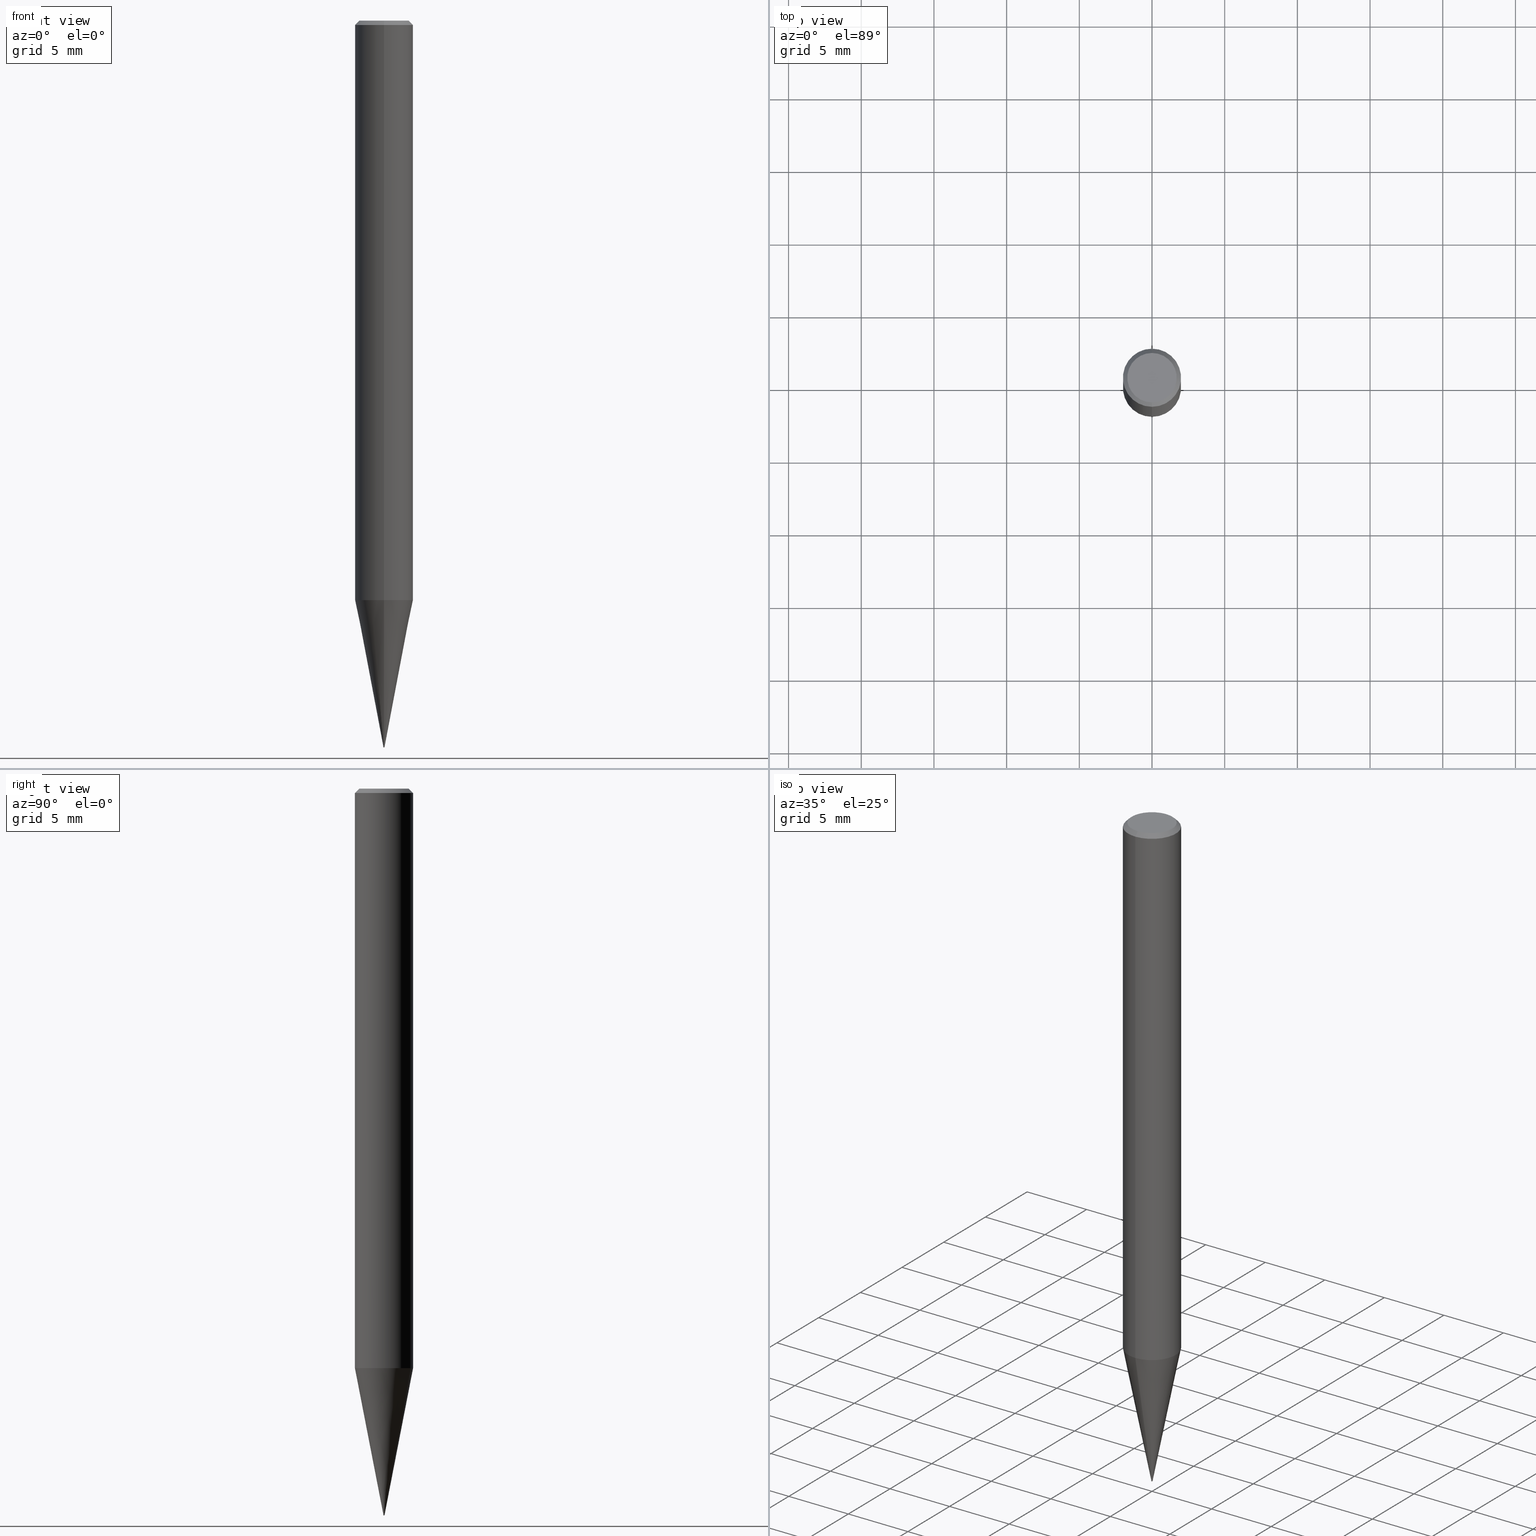
[diagram: canonical four-view strip — front | top / right | iso, engineering-drawing reading convention]
A machine part, canonical four-view strip (front | top / right | iso — engineering-drawing reading convention). The complete STEP part file that produces these views, byte-faithful:
ISO-10303-21;
HEADER;
FILE_DESCRIPTION(('no description'),'unknown implementation level');
FILE_NAME('HSB2001-0010-Huellk.stp','  ',('CIMSOURCE GmbH'),('CADClick - KiM GmbH - www.kimweb.de'),'unknown preprocess','ACIS','unknown authorization');
FILE_SCHEMA(('automotive_design'));
ENDSEC;
DATA;
#1=MECHANICAL_DESIGN_GEOMETRIC_PRESENTATION_REPRESENTATION(' ',(#14,#15,#16,#17,#18,#19,#20,#21,#22,#23,#24,#25,#26,#27,#28,#29,#30,#31,#32,#33,#34,#35,#36,#37,#38,#39,#40,#41,#42,#43,#44,#45,#46,#47,#48,#49,#50,#51,#52,#53,#54,#55,#56,#57,#58,#59,#60,#61,#62,#63,#64,#65,#66),#10);
#2=PRODUCT_DEFINITION_CONTEXT('',#67,'design');
#3=APPLICATION_PROTOCOL_DEFINITION('INTERNATIONAL STANDARD','automotive_design',1994,#67);
#4=PRODUCT_CATEGORY_RELATIONSHIP('NONE','NONE',#68,#69);
#5=SHAPE_DEFINITION_REPRESENTATION(#70,#71);
#6=PRODUCT_DEFINITION_CONTEXT('',#72,'design');
#7=APPLICATION_PROTOCOL_DEFINITION('INTERNATIONAL STANDARD','automotive_design',1994,#72);
#8=PRODUCT_CATEGORY_RELATIONSHIP('NONE','NONE',#73,#74);
#9=SHAPE_DEFINITION_REPRESENTATION(#75,#76);
#10= (GEOMETRIC_REPRESENTATION_CONTEXT(3)GLOBAL_UNCERTAINTY_ASSIGNED_CONTEXT((#79))GLOBAL_UNIT_ASSIGNED_CONTEXT((#81,#82,#83))REPRESENTATION_CONTEXT('NONE','WORKSPACE'));
#14=STYLED_ITEM('',(#85),#86);
#15=STYLED_ITEM('',(#87),#88);
#16=STYLED_ITEM('',(#89),#90);
#17=STYLED_ITEM('',(#91),#92);
#18=STYLED_ITEM('',(#93),#94);
#19=STYLED_ITEM('',(#95),#96);
#20=STYLED_ITEM('',(#97),#98);
#21=STYLED_ITEM('',(#99),#100);
#22=STYLED_ITEM('',(#101),#102);
#23=STYLED_ITEM('',(#103),#104);
#24=STYLED_ITEM('',(#105),#106);
#25=STYLED_ITEM('',(#107),#108);
#26=STYLED_ITEM('',(#109),#110);
#27=STYLED_ITEM('',(#111),#112);
#28=STYLED_ITEM('',(#113),#114);
#29=STYLED_ITEM('',(#115),#116);
#30=STYLED_ITEM('',(#117),#118);
#31=STYLED_ITEM('',(#119),#120);
#32=STYLED_ITEM('',(#121),#122);
#33=STYLED_ITEM('',(#123),#124);
#34=STYLED_ITEM('',(#125),#126);
#35=STYLED_ITEM('',(#127),#128);
#36=STYLED_ITEM('',(#129),#130);
#37=STYLED_ITEM('',(#131),#132);
#38=STYLED_ITEM('',(#133),#134);
#39=STYLED_ITEM('',(#135),#136);
#40=STYLED_ITEM('',(#137),#138);
#41=STYLED_ITEM('',(#139),#140);
#42=STYLED_ITEM('',(#141),#142);
#43=STYLED_ITEM('',(#143),#144);
#44=STYLED_ITEM('',(#145),#146);
#45=STYLED_ITEM('',(#147),#148);
#46=STYLED_ITEM('',(#149),#150);
#47=STYLED_ITEM('',(#151),#152);
#48=STYLED_ITEM('',(#153),#154);
#49=STYLED_ITEM('',(#155),#156);
#50=STYLED_ITEM('',(#157),#158);
#51=STYLED_ITEM('',(#159),#160);
#52=STYLED_ITEM('',(#161),#162);
#53=STYLED_ITEM('',(#163),#164);
#54=STYLED_ITEM('',(#165),#166);
#55=STYLED_ITEM('',(#167),#168);
#56=STYLED_ITEM('',(#169),#170);
#57=STYLED_ITEM('',(#171),#172);
#58=STYLED_ITEM('',(#173),#174);
#59=STYLED_ITEM('',(#175),#176);
#60=STYLED_ITEM('',(#177),#178);
#61=STYLED_ITEM('',(#179),#180);
#62=STYLED_ITEM('',(#181),#182);
#63=STYLED_ITEM('',(#183),#184);
#64=STYLED_ITEM('',(#185),#186);
#65=STYLED_ITEM('',(#187),#188);
#66=STYLED_ITEM('',(#189),#190);
#67=APPLICATION_CONTEXT(' ');
#68=PRODUCT_CATEGORY('part','NONE');
#69=PRODUCT_RELATED_PRODUCT_CATEGORY('detail',' ',(#191));
#70=PRODUCT_DEFINITION_SHAPE('NONE','NONE',#192);
#71=ADVANCED_BREP_SHAPE_REPRESENTATION('1',(#98,#193),#10);
#72=APPLICATION_CONTEXT(' ');
#73=PRODUCT_CATEGORY('part','NONE');
#74=PRODUCT_RELATED_PRODUCT_CATEGORY('detail',' ',(#194));
#75=PRODUCT_DEFINITION_SHAPE('NONE','NONE',#195);
#76=ADVANCED_BREP_SHAPE_REPRESENTATION('2',(#174,#196),#10);
#79=UNCERTAINTY_MEASURE_WITH_UNIT(LENGTH_MEASURE(1.0E-006),#81,'','');
#81= (CONVERSION_BASED_UNIT('MILLIMETRE',#199)LENGTH_UNIT()NAMED_UNIT(#202));
#82= (NAMED_UNIT(#204)PLANE_ANGLE_UNIT()SI_UNIT($,.RADIAN.));
#83= (NAMED_UNIT(#204)SOLID_ANGLE_UNIT()SI_UNIT($,.STERADIAN.));
#85=PRESENTATION_STYLE_ASSIGNMENT((#210));
#86=ADVANCED_FACE('',(#211),#212,.T.);
#87=PRESENTATION_STYLE_ASSIGNMENT((#213));
#88=ADVANCED_FACE('',(#214),#215,.T.);
#89=PRESENTATION_STYLE_ASSIGNMENT((#216));
#90=EDGE_CURVE('',#154,#144,#217,.T.);
#91=PRESENTATION_STYLE_ASSIGNMENT((#218));
#92=EDGE_CURVE('',#166,#150,#219,.T.);
#93=PRESENTATION_STYLE_ASSIGNMENT((#220));
#94=EDGE_CURVE('',#150,#166,#221,.T.);
#95=PRESENTATION_STYLE_ASSIGNMENT((#222));
#96=EDGE_CURVE('',#184,#168,#223,.T.);
#97=PRESENTATION_STYLE_ASSIGNMENT((#224));
#98=MANIFOLD_SOLID_BREP('1',#225);
#99=PRESENTATION_STYLE_ASSIGNMENT((#226));
#100=ADVANCED_FACE('',(#227),#228,.T.);
#101=PRESENTATION_STYLE_ASSIGNMENT((#229));
#102=VERTEX_POINT('',#230);
#103=PRESENTATION_STYLE_ASSIGNMENT((#231));
#104=EDGE_CURVE('',#166,#120,#232,.T.);
#105=PRESENTATION_STYLE_ASSIGNMENT((#233));
#106=VERTEX_POINT('',#234);
#107=PRESENTATION_STYLE_ASSIGNMENT((#235));
#108=EDGE_CURVE('',#162,#102,#236,.T.);
#109=PRESENTATION_STYLE_ASSIGNMENT((#237));
#110=EDGE_CURVE('',#184,#116,#238,.T.);
#111=PRESENTATION_STYLE_ASSIGNMENT((#239));
#112=VERTEX_POINT('',#240);
#113=PRESENTATION_STYLE_ASSIGNMENT((#241));
#114=ADVANCED_FACE('',(#242),#243,.T.);
#115=PRESENTATION_STYLE_ASSIGNMENT((#244));
#116=VERTEX_POINT('',#245);
#117=PRESENTATION_STYLE_ASSIGNMENT((#246));
#118=EDGE_CURVE('',#112,#144,#247,.T.);
#119=PRESENTATION_STYLE_ASSIGNMENT((#248));
#120=VERTEX_POINT('',#249);
#121=PRESENTATION_STYLE_ASSIGNMENT((#250));
#122=VERTEX_POINT('',#251);
#123=PRESENTATION_STYLE_ASSIGNMENT((#252));
#124=EDGE_CURVE('',#106,#150,#253,.T.);
#125=PRESENTATION_STYLE_ASSIGNMENT((#254));
#126=EDGE_CURVE('',#184,#116,#255,.T.);
#127=PRESENTATION_STYLE_ASSIGNMENT((#256));
#128=EDGE_CURVE('',#102,#162,#257,.T.);
#129=PRESENTATION_STYLE_ASSIGNMENT((#258));
#130=ADVANCED_FACE('',(#259,#260),#261,.T.);
#131=PRESENTATION_STYLE_ASSIGNMENT((#262));
#132=ADVANCED_FACE('',(#263),#264,.T.);
#133=PRESENTATION_STYLE_ASSIGNMENT((#265));
#134=EDGE_CURVE('',#116,#184,#266,.T.);
#135=PRESENTATION_STYLE_ASSIGNMENT((#267));
#136=ADVANCED_FACE('',(#268),#269,.T.);
#137=PRESENTATION_STYLE_ASSIGNMENT((#270));
#138=ADVANCED_FACE('',(#271),#272,.T.);
#139=PRESENTATION_STYLE_ASSIGNMENT((#273));
#140=ADVANCED_FACE('',(#274),#275,.T.);
#141=PRESENTATION_STYLE_ASSIGNMENT((#276));
#142=EDGE_CURVE('',#168,#122,#277,.T.);
#143=PRESENTATION_STYLE_ASSIGNMENT((#278));
#144=VERTEX_POINT('',#279);
#145=PRESENTATION_STYLE_ASSIGNMENT((#280));
#146=EDGE_CURVE('',#106,#120,#281,.T.);
#147=PRESENTATION_STYLE_ASSIGNMENT((#282));
#148=EDGE_CURVE('',#122,#168,#283,.T.);
#149=PRESENTATION_STYLE_ASSIGNMENT((#284));
#150=VERTEX_POINT('',#285);
#151=PRESENTATION_STYLE_ASSIGNMENT((#286));
#152=EDGE_CURVE('',#102,#166,#287,.T.);
#153=PRESENTATION_STYLE_ASSIGNMENT((#288));
#154=VERTEX_POINT('',#289);
#155=PRESENTATION_STYLE_ASSIGNMENT((#290));
#156=EDGE_CURVE('',#154,#190,#291,.T.);
#157=PRESENTATION_STYLE_ASSIGNMENT((#292));
#158=EDGE_CURVE('',#120,#106,#293,.T.);
#159=PRESENTATION_STYLE_ASSIGNMENT((#294));
#160=EDGE_CURVE('',#144,#112,#295,.T.);
#161=PRESENTATION_STYLE_ASSIGNMENT((#296));
#162=VERTEX_POINT('',#297);
#163=PRESENTATION_STYLE_ASSIGNMENT((#298));
#164=EDGE_CURVE('',#122,#116,#299,.T.);
#165=PRESENTATION_STYLE_ASSIGNMENT((#300));
#166=VERTEX_POINT('',#301);
#167=PRESENTATION_STYLE_ASSIGNMENT((#302));
#168=VERTEX_POINT('',#303);
#169=PRESENTATION_STYLE_ASSIGNMENT((#304));
#170=ADVANCED_FACE('',(#305),#306,.T.);
#171=PRESENTATION_STYLE_ASSIGNMENT((#307));
#172=ADVANCED_FACE('',(#308),#309,.T.);
#173=PRESENTATION_STYLE_ASSIGNMENT((#310));
#174=MANIFOLD_SOLID_BREP('2',#311);
#175=PRESENTATION_STYLE_ASSIGNMENT((#312));
#176=EDGE_CURVE('',#190,#154,#313,.T.);
#177=PRESENTATION_STYLE_ASSIGNMENT((#314));
#178=ADVANCED_FACE('',(#315),#316,.T.);
#179=PRESENTATION_STYLE_ASSIGNMENT((#317));
#180=ADVANCED_FACE('',(#318),#319,.T.);
#181=PRESENTATION_STYLE_ASSIGNMENT((#320));
#182=ADVANCED_FACE('',(#321),#322,.T.);
#183=PRESENTATION_STYLE_ASSIGNMENT((#323));
#184=VERTEX_POINT('',#324);
#185=PRESENTATION_STYLE_ASSIGNMENT((#325));
#186=EDGE_CURVE('',#150,#162,#326,.T.);
#187=PRESENTATION_STYLE_ASSIGNMENT((#327));
#188=EDGE_CURVE('',#112,#190,#328,.T.);
#189=PRESENTATION_STYLE_ASSIGNMENT((#329));
#190=VERTEX_POINT('',#330);
#191=PRODUCT('1','1','PART-1-DESC',(#331));
#192=PRODUCT_DEFINITION('NONE','NONE',#332,#2);
#193=AXIS2_PLACEMENT_3D('',#333,#334,#335);
#194=PRODUCT('2','2','PART-2-DESC',(#336));
#195=PRODUCT_DEFINITION('NONE','NONE',#337,#6);
#196=AXIS2_PLACEMENT_3D('',#338,#339,#340);
#199=LENGTH_MEASURE_WITH_UNIT(LENGTH_MEASURE(1.0),#341);
#202=DIMENSIONAL_EXPONENTS(1.0,0.0,0.0,0.0,0.0,0.0,0.0);
#204=DIMENSIONAL_EXPONENTS(0.0,0.0,0.0,0.0,0.0,0.0,0.0);
#210=SURFACE_STYLE_USAGE(.BOTH.,#342);
#211=FACE_OUTER_BOUND('',#343,.T.);
#212=CONICAL_SURFACE('',#344,1.85,0.785398163397453);
#213=SURFACE_STYLE_USAGE(.BOTH.,#345);
#214=FACE_OUTER_BOUND('',#346,.T.);
#215=SPHERICAL_SURFACE('',#347,0.05);
#216=CURVE_STYLE('',#348,POSITIVE_LENGTH_MEASURE(1.0E-006),#349);
#217=LINE('',#350,#351);
#218=CURVE_STYLE('',#352,POSITIVE_LENGTH_MEASURE(1.0E-006),#353);
#219=CIRCLE('',#354,2.0);
#220=CURVE_STYLE('',#355,POSITIVE_LENGTH_MEASURE(1.0E-006),#356);
#221=CIRCLE('',#357,2.0);
#222=CURVE_STYLE('',#358,POSITIVE_LENGTH_MEASURE(1.0E-006),#359);
#223=LINE('',#360,#361);
#224=SURFACE_STYLE_USAGE(.BOTH.,#362);
#225=CLOSED_SHELL('',(#170,#100,#86,#130,#178,#138,#182,#172,#132));
#226=SURFACE_STYLE_USAGE(.BOTH.,#363);
#227=FACE_OUTER_BOUND('',#364,.T.);
#228=CYLINDRICAL_SURFACE('',#365,2.0);
#229=POINT_STYLE(' ',#366,POSITIVE_LENGTH_MEASURE(1.0E-006),#367);
#230=CARTESIAN_POINT('',(0.0,1.7,0.0));
#231=CURVE_STYLE('',#368,POSITIVE_LENGTH_MEASURE(1.0E-006),#369);
#232=LINE('',#370,#371);
#233=POINT_STYLE(' ',#372,POSITIVE_LENGTH_MEASURE(1.0E-006),#373);
#234=CARTESIAN_POINT('',(2.44921270764475E-016,-2.0,-39.868));
#235=CURVE_STYLE('',#374,POSITIVE_LENGTH_MEASURE(1.0E-006),#375);
#236=CIRCLE('',#376,1.7);
#237=CURVE_STYLE('',#377,POSITIVE_LENGTH_MEASURE(1.0E-006),#378);
#238=CIRCLE('',#379,0.05);
#239=POINT_STYLE(' ',#380,POSITIVE_LENGTH_MEASURE(1.0E-006),#381);
#240=CARTESIAN_POINT('',(0.0,1.99995,-39.868));
#241=SURFACE_STYLE_USAGE(.BOTH.,#382);
#242=FACE_OUTER_BOUND('',#383,.T.);
#243=PLANE('',#384);
#244=POINT_STYLE(' ',#385,POSITIVE_LENGTH_MEASURE(1.0E-006),#386);
#245=CARTESIAN_POINT('',(0.0,0.05,-49.95));
#246=CURVE_STYLE('',#387,POSITIVE_LENGTH_MEASURE(1.0E-006),#388);
#247=CIRCLE('',#389,1.99995);
#248=POINT_STYLE(' ',#390,POSITIVE_LENGTH_MEASURE(1.0E-006),#391);
#249=CARTESIAN_POINT('',(0.0,2.0,-39.868));
#250=POINT_STYLE(' ',#392,POSITIVE_LENGTH_MEASURE(1.0E-006),#393);
#251=CARTESIAN_POINT('',(0.0,0.0499,-49.9));
#252=CURVE_STYLE('',#394,POSITIVE_LENGTH_MEASURE(1.0E-006),#395);
#253=LINE('',#396,#397);
#254=CURVE_STYLE('',#398,POSITIVE_LENGTH_MEASURE(1.0E-006),#399);
#255=CIRCLE('',#400,0.05);
#256=CURVE_STYLE('',#401,POSITIVE_LENGTH_MEASURE(1.0E-006),#402);
#257=CIRCLE('',#403,1.7);
#258=SURFACE_STYLE_USAGE(.BOTH.,#404);
#259=FACE_OUTER_BOUND('',#405,.T.);
#260=FACE_BOUND('',#406,.T.);
#261=PLANE('',#407);
#262=SURFACE_STYLE_USAGE(.BOTH.,#408);
#263=FACE_OUTER_BOUND('',#409,.T.);
#264=PLANE('',#410);
#265=CURVE_STYLE('',#411,POSITIVE_LENGTH_MEASURE(1.0E-006),#412);
#266=CIRCLE('',#413,0.05);
#267=SURFACE_STYLE_USAGE(.BOTH.,#414);
#268=FACE_OUTER_BOUND('',#415,.T.);
#269=SPHERICAL_SURFACE('',#416,0.05);
#270=SURFACE_STYLE_USAGE(.BOTH.,#417);
#271=FACE_OUTER_BOUND('',#418,.T.);
#272=CONICAL_SURFACE('',#419,1.85,0.785398163397453);
#273=SURFACE_STYLE_USAGE(.BOTH.,#420);
#274=FACE_OUTER_BOUND('',#421,.T.);
#275=CONICAL_SURFACE('',#422,0.04995,0.00199999733333979);
#276=CURVE_STYLE('',#423,POSITIVE_LENGTH_MEASURE(1.0E-006),#424);
#277=CIRCLE('',#425,0.0499);
#278=POINT_STYLE(' ',#426,POSITIVE_LENGTH_MEASURE(1.0E-006),#427);
#279=CARTESIAN_POINT('',(2.44915147732706E-016,-1.99995,-39.868));
#280=CURVE_STYLE('',#428,POSITIVE_LENGTH_MEASURE(1.0E-006),#429);
#281=CIRCLE('',#430,2.0);
#282=CURVE_STYLE('',#431,POSITIVE_LENGTH_MEASURE(1.0E-006),#432);
#283=CIRCLE('',#433,0.0499);
#284=POINT_STYLE(' ',#434,POSITIVE_LENGTH_MEASURE(1.0E-006),#435);
#285=CARTESIAN_POINT('',(2.44921270764475E-016,-2.0,-0.299999999999997));
#286=CURVE_STYLE('',#436,POSITIVE_LENGTH_MEASURE(1.0E-006),#437);
#287=LINE('',#438,#439);
#288=POINT_STYLE(' ',#440,POSITIVE_LENGTH_MEASURE(1.0E-006),#441);
#289=CARTESIAN_POINT('',(6.11690873734274E-018,-0.04995,-49.9));
#290=CURVE_STYLE('',#442,POSITIVE_LENGTH_MEASURE(1.0E-006),#443);
#291=CIRCLE('',#444,0.04995);
#292=CURVE_STYLE('',#445,POSITIVE_LENGTH_MEASURE(1.0E-006),#446);
#293=CIRCLE('',#447,2.0);
#294=CURVE_STYLE('',#448,POSITIVE_LENGTH_MEASURE(1.0E-006),#449);
#295=CIRCLE('',#450,1.99995);
#296=POINT_STYLE(' ',#451,POSITIVE_LENGTH_MEASURE(1.0E-006),#452);
#297=CARTESIAN_POINT('',(2.08183080149804E-016,-1.7,0.0));
#298=CURVE_STYLE('',#453,POSITIVE_LENGTH_MEASURE(1.0E-006),#454);
#299=LINE('',#455,#456);
#300=POINT_STYLE(' ',#457,POSITIVE_LENGTH_MEASURE(1.0E-006),#458);
#301=CARTESIAN_POINT('',(0.0,2.0,-0.299999999999997));
#302=POINT_STYLE(' ',#459,POSITIVE_LENGTH_MEASURE(1.0E-006),#460);
#303=CARTESIAN_POINT('',(6.11078570557366E-018,-0.0499,-49.9));
#304=SURFACE_STYLE_USAGE(.BOTH.,#461);
#305=FACE_OUTER_BOUND('',#462,.T.);
#306=CONICAL_SURFACE('',#463,1.02495,0.191983983430966);
#307=SURFACE_STYLE_USAGE(.BOTH.,#464);
#308=FACE_OUTER_BOUND('',#465,.T.);
#309=CONICAL_SURFACE('',#466,1.02495,0.191983983430966);
#310=SURFACE_STYLE_USAGE(.BOTH.,#467);
#311=CLOSED_SHELL('',(#136,#180,#114,#140,#88));
#312=CURVE_STYLE('',#468,POSITIVE_LENGTH_MEASURE(1.0E-006),#469);
#313=CIRCLE('',#470,0.04995);
#314=SURFACE_STYLE_USAGE(.BOTH.,#471);
#315=FACE_OUTER_BOUND('',#472,.T.);
#316=PLANE('',#473);
#317=SURFACE_STYLE_USAGE(.BOTH.,#474);
#318=FACE_OUTER_BOUND('',#475,.T.);
#319=CONICAL_SURFACE('',#476,0.04995,0.00199999733333979);
#320=SURFACE_STYLE_USAGE(.BOTH.,#477);
#321=FACE_OUTER_BOUND('',#478,.T.);
#322=CYLINDRICAL_SURFACE('',#479,2.0);
#323=POINT_STYLE(' ',#480,POSITIVE_LENGTH_MEASURE(1.0E-006),#481);
#324=CARTESIAN_POINT('',(6.12303176911188E-018,-0.05,-49.95));
#325=CURVE_STYLE('',#482,POSITIVE_LENGTH_MEASURE(1.0E-006),#483);
#326=LINE('',#484,#485);
#327=CURVE_STYLE('',#486,POSITIVE_LENGTH_MEASURE(1.0E-006),#487);
#328=LINE('',#488,#489);
#329=POINT_STYLE(' ',#490,POSITIVE_LENGTH_MEASURE(1.0E-006),#491);
#330=CARTESIAN_POINT('',(0.0,0.04995,-49.9));
#331=PRODUCT_CONTEXT('',#67,'mechanical');
#332=PRODUCT_DEFINITION_FORMATION_WITH_SPECIFIED_SOURCE(' ','NONE',#191,.NOT_KNOWN.);
#333=CARTESIAN_POINT('',(0.0,0.0,0.0));
#334=DIRECTION('',(0.0,0.0,1.0));
#335=DIRECTION('',(1.0,0.0,0.0));
#336=PRODUCT_CONTEXT('',#72,'mechanical');
#337=PRODUCT_DEFINITION_FORMATION_WITH_SPECIFIED_SOURCE(' ','NONE',#194,.NOT_KNOWN.);
#338=CARTESIAN_POINT('',(0.0,0.0,0.0));
#339=DIRECTION('',(0.0,0.0,1.0));
#340=DIRECTION('',(1.0,0.0,0.0));
#341= (NAMED_UNIT(#202)LENGTH_UNIT()SI_UNIT(.MILLI.,.METRE.));
#342=SURFACE_SIDE_STYLE('',(#493));
#343=EDGE_LOOP('',(#494,#495,#496,#497));
#344=AXIS2_PLACEMENT_3D('',#498,#499,#500);
#345=SURFACE_SIDE_STYLE('',(#501));
#346=EDGE_LOOP('',(#502,#503));
#347=AXIS2_PLACEMENT_3D('',#504,#505,#506);
#348=DRAUGHTING_PRE_DEFINED_CURVE_FONT('continuous');
#349=COLOUR_RGB('',0.498039215803146,0.498039215803146,0.498039215803146);
#350=CARTESIAN_POINT('',(1.25516028235025E-016,-1.02495,-44.884));
#351=VECTOR('',#507,1.0);
#352=DRAUGHTING_PRE_DEFINED_CURVE_FONT('continuous');
#353=COLOUR_RGB('',0.498039215803146,0.498039215803146,0.498039215803146);
#354=AXIS2_PLACEMENT_3D('',#508,#509,#510);
#355=DRAUGHTING_PRE_DEFINED_CURVE_FONT('continuous');
#356=COLOUR_RGB('',0.498039215803146,0.498039215803146,0.498039215803146);
#357=AXIS2_PLACEMENT_3D('',#511,#512,#513);
#358=DRAUGHTING_PRE_DEFINED_CURVE_FONT('continuous');
#359=COLOUR_RGB('',0.800000011920929,0.800000011920929,0.800000011920929);
#360=CARTESIAN_POINT('',(6.11690873734277E-018,-0.04995,-49.925));
#361=VECTOR('',#514,1.0);
#362=SURFACE_SIDE_STYLE('',(#515));
#363=SURFACE_SIDE_STYLE('',(#516));
#364=EDGE_LOOP('',(#517,#518,#519,#520));
#365=AXIS2_PLACEMENT_3D('',#521,#522,#523);
#366=PRE_DEFINED_MARKER('');
#367=COLOUR_RGB('',0.498039215803146,0.498039215803146,0.498039215803146);
#368=DRAUGHTING_PRE_DEFINED_CURVE_FONT('continuous');
#369=COLOUR_RGB('',0.498039215803146,0.498039215803146,0.498039215803146);
#370=CARTESIAN_POINT('',(-2.44921270764475E-016,2.0,-20.084));
#371=VECTOR('',#524,1.0);
#372=PRE_DEFINED_MARKER('');
#373=COLOUR_RGB('',0.498039215803146,0.498039215803146,0.498039215803146);
#374=DRAUGHTING_PRE_DEFINED_CURVE_FONT('continuous');
#375=COLOUR_RGB('',0.498039215803146,0.498039215803146,0.498039215803146);
#376=AXIS2_PLACEMENT_3D('',#525,#526,#527);
#377=DRAUGHTING_PRE_DEFINED_CURVE_FONT('continuous');
#378=COLOUR_RGB('',0.800000011920929,0.800000011920929,0.800000011920929);
#379=AXIS2_PLACEMENT_3D('',#528,#529,#530);
#380=PRE_DEFINED_MARKER('');
#381=COLOUR_RGB('',0.498039215803146,0.498039215803146,0.498039215803146);
#382=SURFACE_SIDE_STYLE('',(#531));
#383=EDGE_LOOP('',(#532,#533));
#384=AXIS2_PLACEMENT_3D('',#534,#535,#536);
#385=PRE_DEFINED_MARKER('');
#386=COLOUR_RGB('',0.800000011920929,0.800000011920929,0.800000011920929);
#387=DRAUGHTING_PRE_DEFINED_CURVE_FONT('continuous');
#388=COLOUR_RGB('',0.498039215803146,0.498039215803146,0.498039215803146);
#389=AXIS2_PLACEMENT_3D('',#537,#538,#539);
#390=PRE_DEFINED_MARKER('');
#391=COLOUR_RGB('',0.498039215803146,0.498039215803146,0.498039215803146);
#392=PRE_DEFINED_MARKER('');
#393=COLOUR_RGB('',0.800000011920929,0.800000011920929,0.800000011920929);
#394=DRAUGHTING_PRE_DEFINED_CURVE_FONT('continuous');
#395=COLOUR_RGB('',0.498039215803146,0.498039215803146,0.498039215803146);
#396=CARTESIAN_POINT('',(2.44921270764475E-016,-2.0,-20.084));
#397=VECTOR('',#540,1.0);
#398=DRAUGHTING_PRE_DEFINED_CURVE_FONT('continuous');
#399=COLOUR_RGB('',0.800000011920929,0.800000011920929,0.800000011920929);
#400=AXIS2_PLACEMENT_3D('',#541,#542,#543);
#401=DRAUGHTING_PRE_DEFINED_CURVE_FONT('continuous');
#402=COLOUR_RGB('',0.498039215803146,0.498039215803146,0.498039215803146);
#403=AXIS2_PLACEMENT_3D('',#544,#545,#546);
#404=SURFACE_SIDE_STYLE('',(#547));
#405=EDGE_LOOP('',(#548,#549));
#406=EDGE_LOOP('',(#550,#551));
#407=AXIS2_PLACEMENT_3D('',#552,#553,#554);
#408=SURFACE_SIDE_STYLE('',(#555));
#409=EDGE_LOOP('',(#556,#557));
#410=AXIS2_PLACEMENT_3D('',#558,#559,#560);
#411=DRAUGHTING_PRE_DEFINED_CURVE_FONT('continuous');
#412=COLOUR_RGB('',0.800000011920929,0.800000011920929,0.800000011920929);
#413=AXIS2_PLACEMENT_3D('',#561,#562,#563);
#414=SURFACE_SIDE_STYLE('',(#564));
#415=EDGE_LOOP('',(#565,#566));
#416=AXIS2_PLACEMENT_3D('',#567,#568,#569);
#417=SURFACE_SIDE_STYLE('',(#570));
#418=EDGE_LOOP('',(#571,#572,#573,#574));
#419=AXIS2_PLACEMENT_3D('',#575,#576,#577);
#420=SURFACE_SIDE_STYLE('',(#578));
#421=EDGE_LOOP('',(#579,#580,#581,#582));
#422=AXIS2_PLACEMENT_3D('',#583,#584,#585);
#423=DRAUGHTING_PRE_DEFINED_CURVE_FONT('continuous');
#424=COLOUR_RGB('',0.800000011920929,0.800000011920929,0.800000011920929);
#425=AXIS2_PLACEMENT_3D('',#586,#587,#588);
#426=PRE_DEFINED_MARKER('');
#427=COLOUR_RGB('',0.498039215803146,0.498039215803146,0.498039215803146);
#428=DRAUGHTING_PRE_DEFINED_CURVE_FONT('continuous');
#429=COLOUR_RGB('',0.498039215803146,0.498039215803146,0.498039215803146);
#430=AXIS2_PLACEMENT_3D('',#589,#590,#591);
#431=DRAUGHTING_PRE_DEFINED_CURVE_FONT('continuous');
#432=COLOUR_RGB('',0.800000011920929,0.800000011920929,0.800000011920929);
#433=AXIS2_PLACEMENT_3D('',#592,#593,#594);
#434=PRE_DEFINED_MARKER('');
#435=COLOUR_RGB('',0.498039215803146,0.498039215803146,0.498039215803146);
#436=DRAUGHTING_PRE_DEFINED_CURVE_FONT('continuous');
#437=COLOUR_RGB('',0.498039215803146,0.498039215803146,0.498039215803146);
#438=CARTESIAN_POINT('',(-2.2655217545714E-016,1.85,-0.149999999999999));
#439=VECTOR('',#595,1.0);
#440=PRE_DEFINED_MARKER('');
#441=COLOUR_RGB('',0.498039215803146,0.498039215803146,0.498039215803146);
#442=DRAUGHTING_PRE_DEFINED_CURVE_FONT('continuous');
#443=COLOUR_RGB('',0.498039215803146,0.498039215803146,0.498039215803146);
#444=AXIS2_PLACEMENT_3D('',#596,#597,#598);
#445=DRAUGHTING_PRE_DEFINED_CURVE_FONT('continuous');
#446=COLOUR_RGB('',0.498039215803146,0.498039215803146,0.498039215803146);
#447=AXIS2_PLACEMENT_3D('',#599,#600,#601);
#448=DRAUGHTING_PRE_DEFINED_CURVE_FONT('continuous');
#449=COLOUR_RGB('',0.498039215803146,0.498039215803146,0.498039215803146);
#450=AXIS2_PLACEMENT_3D('',#602,#603,#604);
#451=PRE_DEFINED_MARKER('');
#452=COLOUR_RGB('',0.498039215803146,0.498039215803146,0.498039215803146);
#453=DRAUGHTING_PRE_DEFINED_CURVE_FONT('continuous');
#454=COLOUR_RGB('',0.800000011920929,0.800000011920929,0.800000011920929);
#455=CARTESIAN_POINT('',(-6.11690873734277E-018,0.04995,-49.925));
#456=VECTOR('',#605,1.0);
#457=PRE_DEFINED_MARKER('');
#458=COLOUR_RGB('',0.498039215803146,0.498039215803146,0.498039215803146);
#459=PRE_DEFINED_MARKER('');
#460=COLOUR_RGB('',0.800000011920929,0.800000011920929,0.800000011920929);
#461=SURFACE_SIDE_STYLE('',(#606));
#462=EDGE_LOOP('',(#607,#608,#609,#610));
#463=AXIS2_PLACEMENT_3D('',#611,#612,#613);
#464=SURFACE_SIDE_STYLE('',(#614));
#465=EDGE_LOOP('',(#615,#616,#617,#618));
#466=AXIS2_PLACEMENT_3D('',#619,#620,#621);
#467=SURFACE_SIDE_STYLE('',(#622));
#468=DRAUGHTING_PRE_DEFINED_CURVE_FONT('continuous');
#469=COLOUR_RGB('',0.498039215803146,0.498039215803146,0.498039215803146);
#470=AXIS2_PLACEMENT_3D('',#623,#624,#625);
#471=SURFACE_SIDE_STYLE('',(#626));
#472=EDGE_LOOP('',(#627,#628));
#473=AXIS2_PLACEMENT_3D('',#629,#630,#631);
#474=SURFACE_SIDE_STYLE('',(#632));
#475=EDGE_LOOP('',(#633,#634,#635,#636));
#476=AXIS2_PLACEMENT_3D('',#637,#638,#639);
#477=SURFACE_SIDE_STYLE('',(#640));
#478=EDGE_LOOP('',(#641,#642,#643,#644));
#479=AXIS2_PLACEMENT_3D('',#645,#646,#647);
#480=PRE_DEFINED_MARKER('');
#481=COLOUR_RGB('',0.800000011920929,0.800000011920929,0.800000011920929);
#482=DRAUGHTING_PRE_DEFINED_CURVE_FONT('continuous');
#483=COLOUR_RGB('',0.498039215803146,0.498039215803146,0.498039215803146);
#484=CARTESIAN_POINT('',(2.2655217545714E-016,-1.85,-0.149999999999999));
#485=VECTOR('',#648,1.0);
#486=DRAUGHTING_PRE_DEFINED_CURVE_FONT('continuous');
#487=COLOUR_RGB('',0.498039215803146,0.498039215803146,0.498039215803146);
#488=CARTESIAN_POINT('',(-1.25516028235025E-016,1.02495,-44.884));
#489=VECTOR('',#649,1.0);
#490=PRE_DEFINED_MARKER('');
#491=COLOUR_RGB('',0.498039215803146,0.498039215803146,0.498039215803146);
#493=SURFACE_STYLE_FILL_AREA(#650);
#494=ORIENTED_EDGE('',*,*,#152,.F.);
#495=ORIENTED_EDGE('',*,*,#128,.T.);
#496=ORIENTED_EDGE('',*,*,#186,.F.);
#497=ORIENTED_EDGE('',*,*,#92,.F.);
#498=CARTESIAN_POINT('',(0.0,0.0,-0.149999999999999));
#499=DIRECTION('',(0.0,-0.0,-1.0));
#500=DIRECTION('',(0.0,1.0,0.0));
#501=SURFACE_STYLE_FILL_AREA(#651);
#502=ORIENTED_EDGE('',*,*,#126,.T.);
#503=ORIENTED_EDGE('',*,*,#134,.T.);
#504=CARTESIAN_POINT('',(0.0,0.0,-49.95));
#505=DIRECTION('',(0.0,1.0,0.0));
#506=DIRECTION('',(0.0,0.0,-1.0));
#507=DIRECTION('',(2.33663222250515E-017,-0.190806802137829,0.981627609767541));
#508=CARTESIAN_POINT('',(0.0,0.0,-0.299999999999997));
#509=DIRECTION('',(0.0,0.0,-1.0));
#510=DIRECTION('',(0.0,1.0,0.0));
#511=CARTESIAN_POINT('',(0.0,0.0,-0.299999999999997));
#512=DIRECTION('',(0.0,0.0,-1.0));
#513=DIRECTION('',(0.0,1.0,0.0));
#514=DIRECTION('',(-2.44920780923411E-019,0.00199999600001206,0.999998000006));
#515=SURFACE_STYLE_FILL_AREA(#652);
#516=SURFACE_STYLE_FILL_AREA(#653);
#517=ORIENTED_EDGE('',*,*,#104,.F.);
#518=ORIENTED_EDGE('',*,*,#92,.T.);
#519=ORIENTED_EDGE('',*,*,#124,.F.);
#520=ORIENTED_EDGE('',*,*,#158,.F.);
#521=CARTESIAN_POINT('',(0.0,0.0,-20.084));
#522=DIRECTION('',(-0.0,-0.0,1.0));
#523=DIRECTION('',(0.0,1.0,0.0));
#524=DIRECTION('',(0.0,0.0,-1.0));
#525=CARTESIAN_POINT('',(0.0,0.0,0.0));
#526=DIRECTION('',(0.0,0.0,-1.0));
#527=DIRECTION('',(0.0,1.0,0.0));
#528=CARTESIAN_POINT('',(0.0,0.0,-49.95));
#529=DIRECTION('',(0.0,0.0,-1.0));
#530=DIRECTION('',(0.0,1.0,0.0));
#531=SURFACE_STYLE_FILL_AREA(#654);
#532=ORIENTED_EDGE('',*,*,#148,.F.);
#533=ORIENTED_EDGE('',*,*,#142,.F.);
#534=CARTESIAN_POINT('',(0.0,0.02495,-49.9));
#535=DIRECTION('',(-0.0,0.0,1.0));
#536=DIRECTION('',(0.0,-1.0,0.0));
#537=CARTESIAN_POINT('',(0.0,0.0,-39.868));
#538=DIRECTION('',(0.0,0.0,-1.0));
#539=DIRECTION('',(0.0,1.0,0.0));
#540=DIRECTION('',(-0.0,-0.0,1.0));
#541=CARTESIAN_POINT('',(0.0,0.0,-49.95));
#542=DIRECTION('',(1.0,0.0,1.22460635382245E-016));
#543=DIRECTION('',(-1.22460635382245E-016,0.0,1.0));
#544=CARTESIAN_POINT('',(0.0,0.0,0.0));
#545=DIRECTION('',(0.0,0.0,-1.0));
#546=DIRECTION('',(0.0,1.0,0.0));
#547=SURFACE_STYLE_FILL_AREA(#655);
#548=ORIENTED_EDGE('',*,*,#158,.T.);
#549=ORIENTED_EDGE('',*,*,#146,.T.);
#550=ORIENTED_EDGE('',*,*,#118,.F.);
#551=ORIENTED_EDGE('',*,*,#160,.F.);
#552=CARTESIAN_POINT('',(0.0,1.0,-39.868));
#553=DIRECTION('',(0.0,0.0,-1.0));
#554=DIRECTION('',(0.0,1.0,0.0));
#555=SURFACE_STYLE_FILL_AREA(#656);
#556=ORIENTED_EDGE('',*,*,#176,.T.);
#557=ORIENTED_EDGE('',*,*,#156,.T.);
#558=CARTESIAN_POINT('',(0.0,0.024975,-49.9));
#559=DIRECTION('',(0.0,0.0,-1.0));
#560=DIRECTION('',(0.0,1.0,0.0));
#561=CARTESIAN_POINT('',(0.0,0.0,-49.95));
#562=DIRECTION('',(0.0,0.0,-1.0));
#563=DIRECTION('',(0.0,1.0,0.0));
#564=SURFACE_STYLE_FILL_AREA(#657);
#565=ORIENTED_EDGE('',*,*,#126,.F.);
#566=ORIENTED_EDGE('',*,*,#110,.T.);
#567=CARTESIAN_POINT('',(0.0,0.0,-49.95));
#568=DIRECTION('',(0.0,1.0,0.0));
#569=DIRECTION('',(0.0,0.0,-1.0));
#570=SURFACE_STYLE_FILL_AREA(#658);
#571=ORIENTED_EDGE('',*,*,#152,.T.);
#572=ORIENTED_EDGE('',*,*,#94,.F.);
#573=ORIENTED_EDGE('',*,*,#186,.T.);
#574=ORIENTED_EDGE('',*,*,#108,.T.);
#575=CARTESIAN_POINT('',(0.0,0.0,-0.149999999999999));
#576=DIRECTION('',(0.0,-0.0,-1.0));
#577=DIRECTION('',(0.0,1.0,0.0));
#578=SURFACE_STYLE_FILL_AREA(#659);
#579=ORIENTED_EDGE('',*,*,#164,.T.);
#580=ORIENTED_EDGE('',*,*,#110,.F.);
#581=ORIENTED_EDGE('',*,*,#96,.T.);
#582=ORIENTED_EDGE('',*,*,#142,.T.);
#583=CARTESIAN_POINT('',(0.0,0.0,-49.925));
#584=DIRECTION('',(0.0,-0.0,-1.0));
#585=DIRECTION('',(0.0,1.0,0.0));
#586=CARTESIAN_POINT('',(0.0,0.0,-49.9));
#587=DIRECTION('',(0.0,0.0,-1.0));
#588=DIRECTION('',(0.0,1.0,0.0));
#589=CARTESIAN_POINT('',(0.0,0.0,-39.868));
#590=DIRECTION('',(0.0,0.0,-1.0));
#591=DIRECTION('',(0.0,1.0,0.0));
#592=CARTESIAN_POINT('',(0.0,0.0,-49.9));
#593=DIRECTION('',(0.0,0.0,-1.0));
#594=DIRECTION('',(0.0,1.0,0.0));
#595=DIRECTION('',(-8.6592745707194E-017,0.707106781186551,-0.707106781186544));
#596=CARTESIAN_POINT('',(0.0,0.0,-49.9));
#597=DIRECTION('',(0.0,0.0,-1.0));
#598=DIRECTION('',(0.0,1.0,0.0));
#599=CARTESIAN_POINT('',(0.0,0.0,-39.868));
#600=DIRECTION('',(0.0,0.0,-1.0));
#601=DIRECTION('',(0.0,1.0,0.0));
#602=CARTESIAN_POINT('',(0.0,0.0,-39.868));
#603=DIRECTION('',(0.0,0.0,-1.0));
#604=DIRECTION('',(0.0,1.0,0.0));
#605=DIRECTION('',(-2.4492078092341E-019,0.00199999600001206,-0.999998000006));
#606=SURFACE_STYLE_FILL_AREA(#660);
#607=ORIENTED_EDGE('',*,*,#188,.F.);
#608=ORIENTED_EDGE('',*,*,#118,.T.);
#609=ORIENTED_EDGE('',*,*,#90,.F.);
#610=ORIENTED_EDGE('',*,*,#176,.F.);
#611=CARTESIAN_POINT('',(0.0,0.0,-44.884));
#612=DIRECTION('',(-0.0,-0.0,1.0));
#613=DIRECTION('',(0.0,1.0,0.0));
#614=SURFACE_STYLE_FILL_AREA(#661);
#615=ORIENTED_EDGE('',*,*,#188,.T.);
#616=ORIENTED_EDGE('',*,*,#156,.F.);
#617=ORIENTED_EDGE('',*,*,#90,.T.);
#618=ORIENTED_EDGE('',*,*,#160,.T.);
#619=CARTESIAN_POINT('',(0.0,0.0,-44.884));
#620=DIRECTION('',(-0.0,-0.0,1.0));
#621=DIRECTION('',(0.0,1.0,0.0));
#622=SURFACE_STYLE_FILL_AREA(#662);
#623=CARTESIAN_POINT('',(0.0,0.0,-49.9));
#624=DIRECTION('',(0.0,0.0,-1.0));
#625=DIRECTION('',(0.0,1.0,0.0));
#626=SURFACE_STYLE_FILL_AREA(#663);
#627=ORIENTED_EDGE('',*,*,#128,.F.);
#628=ORIENTED_EDGE('',*,*,#108,.F.);
#629=CARTESIAN_POINT('',(0.0,0.85,0.0));
#630=DIRECTION('',(-0.0,0.0,1.0));
#631=DIRECTION('',(0.0,-1.0,0.0));
#632=SURFACE_STYLE_FILL_AREA(#664);
#633=ORIENTED_EDGE('',*,*,#164,.F.);
#634=ORIENTED_EDGE('',*,*,#148,.T.);
#635=ORIENTED_EDGE('',*,*,#96,.F.);
#636=ORIENTED_EDGE('',*,*,#134,.F.);
#637=CARTESIAN_POINT('',(0.0,0.0,-49.925));
#638=DIRECTION('',(0.0,-0.0,-1.0));
#639=DIRECTION('',(0.0,1.0,0.0));
#640=SURFACE_STYLE_FILL_AREA(#665);
#641=ORIENTED_EDGE('',*,*,#104,.T.);
#642=ORIENTED_EDGE('',*,*,#146,.F.);
#643=ORIENTED_EDGE('',*,*,#124,.T.);
#644=ORIENTED_EDGE('',*,*,#94,.T.);
#645=CARTESIAN_POINT('',(0.0,0.0,-20.084));
#646=DIRECTION('',(-0.0,-0.0,1.0));
#647=DIRECTION('',(0.0,1.0,0.0));
#648=DIRECTION('',(-8.6592745707194E-017,0.707106781186551,0.707106781186544));
#649=DIRECTION('',(2.33663222250515E-017,-0.190806802137829,-0.981627609767541));
#650=FILL_AREA_STYLE('',(#666));
#651=FILL_AREA_STYLE('',(#667));
#652=FILL_AREA_STYLE('',(#668));
#653=FILL_AREA_STYLE('',(#669));
#654=FILL_AREA_STYLE('',(#670));
#655=FILL_AREA_STYLE('',(#671));
#656=FILL_AREA_STYLE('',(#672));
#657=FILL_AREA_STYLE('',(#673));
#658=FILL_AREA_STYLE('',(#674));
#659=FILL_AREA_STYLE('',(#675));
#660=FILL_AREA_STYLE('',(#676));
#661=FILL_AREA_STYLE('',(#677));
#662=FILL_AREA_STYLE('',(#678));
#663=FILL_AREA_STYLE('',(#679));
#664=FILL_AREA_STYLE('',(#680));
#665=FILL_AREA_STYLE('',(#681));
#666=FILL_AREA_STYLE_COLOUR('',#682);
#667=FILL_AREA_STYLE_COLOUR('',#683);
#668=FILL_AREA_STYLE_COLOUR('',#684);
#669=FILL_AREA_STYLE_COLOUR('',#685);
#670=FILL_AREA_STYLE_COLOUR('',#686);
#671=FILL_AREA_STYLE_COLOUR('',#687);
#672=FILL_AREA_STYLE_COLOUR('',#688);
#673=FILL_AREA_STYLE_COLOUR('',#689);
#674=FILL_AREA_STYLE_COLOUR('',#690);
#675=FILL_AREA_STYLE_COLOUR('',#691);
#676=FILL_AREA_STYLE_COLOUR('',#692);
#677=FILL_AREA_STYLE_COLOUR('',#693);
#678=FILL_AREA_STYLE_COLOUR('',#694);
#679=FILL_AREA_STYLE_COLOUR('',#695);
#680=FILL_AREA_STYLE_COLOUR('',#696);
#681=FILL_AREA_STYLE_COLOUR('',#697);
#682=COLOUR_RGB('',0.498039215803146,0.498039215803146,0.498039215803146);
#683=COLOUR_RGB('',0.800000011920929,0.800000011920929,0.800000011920929);
#684=COLOUR_RGB('',0.498039215803146,0.498039215803146,0.498039215803146);
#685=COLOUR_RGB('',0.498039215803146,0.498039215803146,0.498039215803146);
#686=COLOUR_RGB('',0.800000011920929,0.800000011920929,0.800000011920929);
#687=COLOUR_RGB('',0.498039215803146,0.498039215803146,0.498039215803146);
#688=COLOUR_RGB('',0.498039215803146,0.498039215803146,0.498039215803146);
#689=COLOUR_RGB('',0.800000011920929,0.800000011920929,0.800000011920929);
#690=COLOUR_RGB('',0.498039215803146,0.498039215803146,0.498039215803146);
#691=COLOUR_RGB('',0.800000011920929,0.800000011920929,0.800000011920929);
#692=COLOUR_RGB('',0.498039215803146,0.498039215803146,0.498039215803146);
#693=COLOUR_RGB('',0.498039215803146,0.498039215803146,0.498039215803146);
#694=COLOUR_RGB('',0.800000011920929,0.800000011920929,0.800000011920929);
#695=COLOUR_RGB('',0.498039215803146,0.498039215803146,0.498039215803146);
#696=COLOUR_RGB('',0.800000011920929,0.800000011920929,0.800000011920929);
#697=COLOUR_RGB('',0.498039215803146,0.498039215803146,0.498039215803146);
#698=AXIS2_PLACEMENT_3D('PCS',#699,#700,#701);
#699=CARTESIAN_POINT('',(0.0,0.0,0.0));
#700=DIRECTION('',(0.0,0.0,1.0));
#701=DIRECTION('',(1.0,0.0,0.0));
#702=AXIS2_PLACEMENT_3D('CIP',#703,#704,#705);
#703=CARTESIAN_POINT('',(0.0,0.0,-50.0));
#704=DIRECTION('',(0.0,0.0,1.0));
#705=DIRECTION('',(1.0,0.0,0.0));
#706=AXIS2_PLACEMENT_3D('CRP',#707,#708,#709);
#707=CARTESIAN_POINT('',(-0.05,0.0,-50.0));
#708=DIRECTION('',(0.0,0.0,1.0));
#709=DIRECTION('',(1.0,0.0,0.0));
#710=AXIS2_PLACEMENT_3D('MCS',#711,#712,#713);
#711=CARTESIAN_POINT('',(0.0,0.0,-39.868));
#712=DIRECTION('',(0.0,0.0,1.0));
#713=DIRECTION('',(1.0,0.0,0.0));
#714=CONSTRUCTIVE_GEOMETRY_REPRESENTATION_RELATIONSHIP('coordinate systems',$,#71,#715);
#715=CONSTRUCTIVE_GEOMETRY_REPRESENTATION('coordinate systems',(#698,#702,#706,#710),#10);
ENDSEC;
END-ISO-10303-21;
